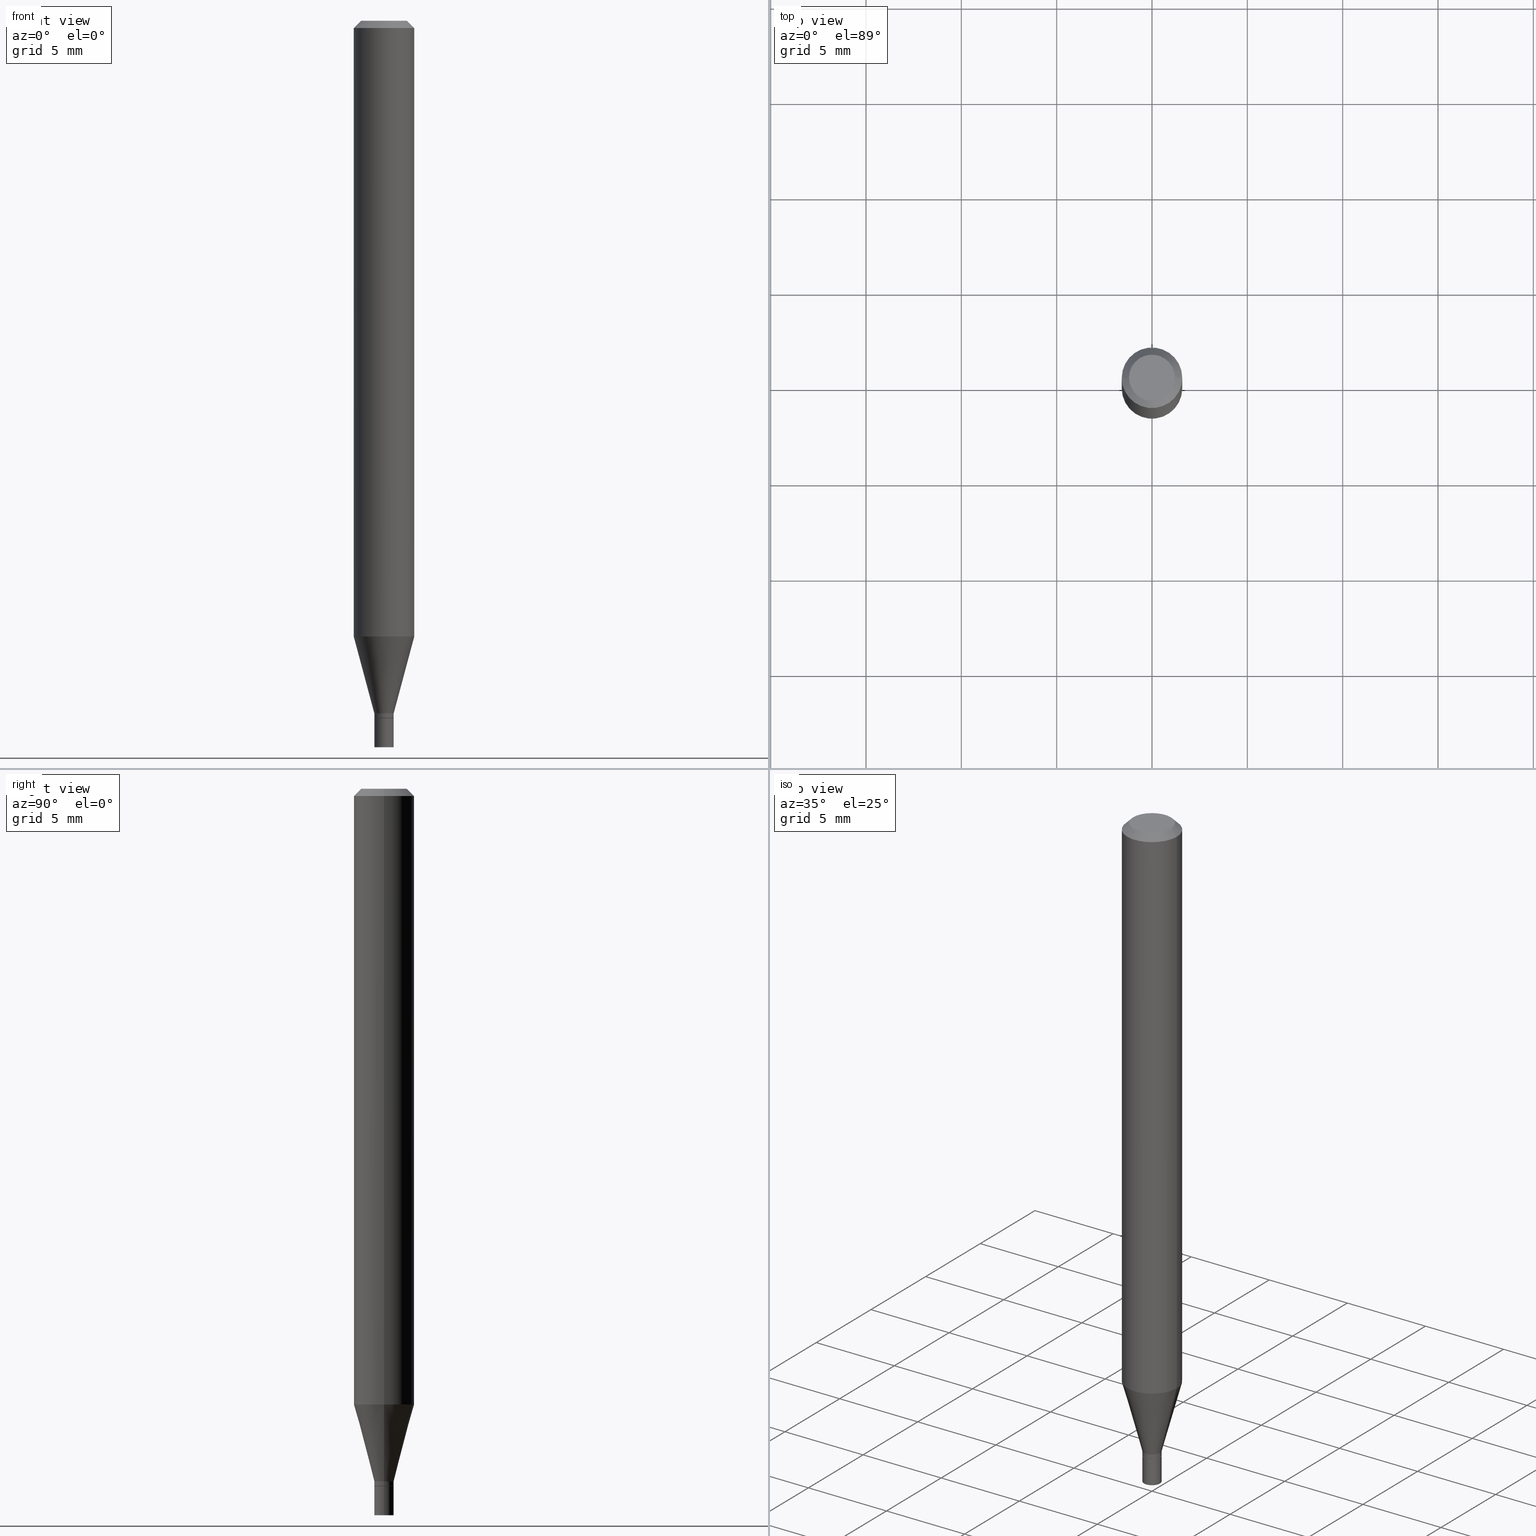
[diagram: canonical four-view strip — front | top / right | iso, engineering-drawing reading convention]
A machine part, canonical four-view strip (front | top / right | iso — engineering-drawing reading convention). The complete STEP part file that produces these views, byte-faithful:
ISO-10303-21;
HEADER;
FILE_DESCRIPTION (( 'STEP AP203' ),
    '1' );
FILE_NAME ('02236.STEP',
    '2024-03-18T19:56:00',
    ( '' ),
    ( '' ),
    'SwSTEP 2.0',
    'SolidWorks 2023',
    '' );
FILE_SCHEMA (( 'CONFIG_CONTROL_DESIGN' ));
ENDSEC;

DATA;
#1 = CARTESIAN_POINT ( 'NONE',  ( -3.223020679335594837E-45, 4.601619341103081537E-31, 1.317956160873471783E-16 ) ) ;
#2 = CARTESIAN_POINT ( 'NONE',  ( -0.01999999999999992409, -4.422823738852031139E-15, -1.429999999999999938 ) ) ;
#3 = DIRECTION ( 'NONE',  ( -2.445468806185136877E-29, 3.491481338843145188E-15, 1.000000000000000000 ) ) ;
#4 = EDGE_CURVE ( 'NONE', #346, #458, #264, .T. ) ;
#5 = PERSON_AND_ORGANIZATION_ROLE ( 'creator' ) ;
#6 = DIRECTION ( 'NONE',  ( 1.000000000000000000, -6.982962677686262766E-15, 0.000000000000000000 ) ) ;
#7 = CARTESIAN_POINT ( 'NONE',  ( 0.000000000000000000, 0.000000000000000000, 0.000000000000000000 ) ) ;
#8 = CONICAL_SURFACE ( 'NONE', #301, 0.01949999999999999997, 0.7853981633974739252 ) ;
#9 = LINE ( 'NONE', #78, #341 ) ;
#10 = AXIS2_PLACEMENT_3D ( 'NONE', #65, #43, #316 ) ;
#11 = DATE_AND_TIME ( #239, #137 ) ;
#12 = DIRECTION ( 'NONE',  ( 1.000000000000000000, -6.982962677686284065E-15, 0.000000000000000000 ) ) ;
#13 = CYLINDRICAL_SURFACE ( 'NONE', #336, 0.06250000000000000000 ) ;
#14 = DIRECTION ( 'NONE',  ( 0.000000000000000000, 0.000000000000000000, 1.000000000000000000 ) ) ;
#15 = DIRECTION ( 'NONE',  ( -2.445468806185136597E-29, 3.491481338843145583E-15, 1.000000000000000000 ) ) ;
#16 = COORDINATED_UNIVERSAL_TIME_OFFSET ( 5, 0, .BEHIND. ) ;
#17 = LINE ( 'NONE', #225, #48 ) ;
#18 = CIRCLE ( 'NONE', #101, 0.02000000000000000042 ) ;
#19 = EDGE_CURVE ( 'NONE', #380, #430, #228, .T. ) ;
#20 = DIRECTION ( 'NONE',  ( 1.000000000000000000, -6.982962677686284065E-15, 0.000000000000000000 ) ) ;
#21 = DATE_AND_TIME ( #417, #429 ) ;
#22 = CONICAL_SURFACE ( 'NONE', #127, 0.06250000000000000000, 0.7853981633974439491 ) ;
#23 = CC_DESIGN_DATE_AND_TIME_ASSIGNMENT ( #331, #149, ( #227 ) ) ;
#24 = VECTOR ( 'NONE', #76, 39.37007874015748143 ) ;
#25 = EDGE_LOOP ( 'NONE', ( #241, #389, #58, #29 ) ) ;
#26 = EDGE_CURVE ( 'NONE', #304, #456, #231, .T. ) ;
#27 = PRODUCT_RELATED_PRODUCT_CATEGORY ( 'detail', '', ( #144 ) ) ;
#28 = AXIS2_PLACEMENT_3D ( 'NONE', #148, #45, #288 ) ;
#29 = ORIENTED_EDGE ( 'NONE', *, *, #254, .F. ) ;
#30 = ORIENTED_EDGE ( 'NONE', *, *, #215, .T. ) ;
#31 = CARTESIAN_POINT ( 'NONE',  ( 3.109139304941917248E-29, -4.439026920160447637E-15, -1.271387840678323000 ) ) ;
#32 = ORIENTED_EDGE ( 'NONE', *, *, #454, .T. ) ;
#33 = AXIS2_PLACEMENT_3D ( 'NONE', #214, #284, #358 ) ;
#34 = CYLINDRICAL_SURFACE ( 'NONE', #377, 0.02000000000000000042 ) ;
#35 = CIRCLE ( 'NONE', #354, 0.04749999999999999362 ) ;
#36 = ORIENTED_EDGE ( 'NONE', *, *, #26, .F. ) ;
#37 = SECURITY_CLASSIFICATION_LEVEL ( 'unclassified' ) ;
#38 = PRODUCT_DEFINITION_SHAPE ( 'NONE', 'NONE',  #153 ) ;
#39 = ADVANCED_FACE ( 'NONE', ( #41 ), #404, .T. ) ;
#40 = DIRECTION ( 'NONE',  ( -2.445468806185136597E-29, 3.491481338843145583E-15, 1.000000000000000000 ) ) ;
#41 = FACE_OUTER_BOUND ( 'NONE', #25, .T. ) ;
#42 = FACE_OUTER_BOUND ( 'NONE', #460, .T. ) ;
#43 = DIRECTION ( 'NONE',  ( 2.445468806185136597E-29, -3.491481338843145583E-15, -1.000000000000000000 ) ) ;
#44 = DIRECTION ( 'NONE',  ( -2.445468806185136597E-29, 3.491481338843145583E-15, 1.000000000000000000 ) ) ;
#45 = DIRECTION ( 'NONE',  ( -2.445468806185136597E-29, 3.491481338843145583E-15, 1.000000000000000000 ) ) ;
#46 = CC_DESIGN_PERSON_AND_ORGANIZATION_ASSIGNMENT ( #339, #371, ( #153 ) ) ;
#47 = CARTESIAN_POINT ( 'NONE',  ( -0.01949999999999999997, -4.886528067286799394E-15, -1.440000000000000169 ) ) ;
#48 = VECTOR ( 'NONE', #159, 39.37007874015748143 ) ;
#49 = CIRCLE ( 'NONE', #302, 0.02000000000000000042 ) ;
#50 = CARTESIAN_POINT ( 'NONE',  ( 0.02000000000000000042, -1.396592535537253145E-16, 9.752353551591871936E-31 ) ) ;
#51 = CARTESIAN_POINT ( 'NONE',  ( 3.521475080906597305E-29, -5.027733127934130649E-15, -1.440000000000000169 ) ) ;
#52 = PERSON_AND_ORGANIZATION ( #226, #163 ) ;
#53 = CARTESIAN_POINT ( 'NONE',  ( -0.02000000000000000042, 1.421085471520200401E-16, -9.837870180509812545E-31 ) ) ;
#54 = APPLICATION_PROTOCOL_DEFINITION ( 'international standard', 'config_control_design', 1994, #399 ) ;
#55 = ADVANCED_FACE ( 'NONE', ( #283 ), #408, .F. ) ;
#56 = CARTESIAN_POINT ( 'NONE',  ( 0.06249999999999999306, -4.875462087515837728E-15, -1.271387840678323000 ) ) ;
#57 = CIRCLE ( 'NONE', #365, 0.02000000000000000042 ) ;
#58 = ORIENTED_EDGE ( 'NONE', *, *, #337, .F. ) ;
#59 = CC_DESIGN_PERSON_AND_ORGANIZATION_ASSIGNMENT ( #278, #5, ( #72 ) ) ;
#60 = ORIENTED_EDGE ( 'NONE', *, *, #281, .F. ) ;
#61 = EDGE_CURVE ( 'NONE', #100, #396, #57, .T. ) ;
#62 = VECTOR ( 'NONE', #110, 39.37007874015748143 ) ;
#63 = EDGE_LOOP ( 'NONE', ( #345, #103, #453, #463 ) ) ;
#64 = EDGE_LOOP ( 'NONE', ( #167, #203 ) ) ;
#65 = CARTESIAN_POINT ( 'NONE',  ( 3.668203209277705088E-31, -5.237222008264718399E-17, -0.01499999999999999944 ) ) ;
#66 = ORIENTED_EDGE ( 'NONE', *, *, #269, .F. ) ;
#67 = ADVANCED_FACE ( 'NONE', ( #333 ), #13, .T. ) ;
#68 = ORIENTED_EDGE ( 'NONE', *, *, #192, .F. ) ;
#69 = CARTESIAN_POINT ( 'NONE',  ( -0.06250000000000000000, -1.801610360271484545E-15, -0.01499999999999999944 ) ) ;
#70 = ADVANCED_FACE ( 'NONE', ( #290 ), #182, .T. ) ;
#71 = VERTEX_POINT ( 'NONE', #2 ) ;
#72 = PRODUCT_DEFINITION_FORMATION_WITH_SPECIFIED_SOURCE ( 'ANY', '', #144, .NOT_KNOWN. ) ;
#73 = DIRECTION ( 'NONE',  ( -2.445468806185136597E-29, 3.491481338843145583E-15, 1.000000000000000000 ) ) ;
#74 = ORIENTED_EDGE ( 'NONE', *, *, #320, .F. ) ;
#75 = PLANE ( 'NONE',  #33 ) ;
#76 = DIRECTION ( 'NONE',  ( -0.7071067811865444641, 2.468850131082224717E-15, -0.7071067811865505703 ) ) ;
#77 = DIRECTION ( 'NONE',  ( 2.438088387897960049E-29, -3.491481338843145188E-15, -1.000000000000000000 ) ) ;
#78 = CARTESIAN_POINT ( 'NONE',  ( -0.01999999999999992409, 1.421085471520194978E-16, -9.837870180509774009E-31 ) ) ;
#79 = CARTESIAN_POINT ( 'NONE',  ( 3.521475080906597305E-29, -5.027733127934130649E-15, -1.440000000000000169 ) ) ;
#80 = DIRECTION ( 'NONE',  ( -2.445468806185136597E-29, 3.491481338843145583E-15, 1.000000000000000000 ) ) ;
#81 = DIRECTION ( 'NONE',  ( 1.000000000000000000, -6.982962677686262766E-15, 0.000000000000000000 ) ) ;
#82 = PERSON_AND_ORGANIZATION_ROLE ( 'design_owner' ) ;
#83 = AXIS2_PLACEMENT_3D ( 'NONE', #349, #209, #114 ) ;
#84 = CIRCLE ( 'NONE', #121, 0.02000000000000000042 ) ;
#85 = DIRECTION ( 'NONE',  ( -2.445468806185136877E-29, 3.491481338843145188E-15, 1.000000000000000000 ) ) ;
#86 = CARTESIAN_POINT ( 'NONE',  ( 0.000000000000000000, 0.000000000000000000, 0.000000000000000000 ) ) ;
#87 = DIRECTION ( 'NONE',  ( -2.445468806185136597E-29, 3.491481338843145583E-15, 1.000000000000000000 ) ) ;
#88 = LINE ( 'NONE', #53, #145 ) ;
#89 = EDGE_CURVE ( 'NONE', #102, #304, #142, .T. ) ;
#90 = FACE_OUTER_BOUND ( 'NONE', #63, .T. ) ;
#91 = CIRCLE ( 'NONE', #236, 0.01999999999999992409 ) ;
#92 = EDGE_LOOP ( 'NONE', ( #105, #406, #198, #238 ) ) ;
#93 = EDGE_LOOP ( 'NONE', ( #207, #388 ) ) ;
#94 = VECTOR ( 'NONE', #85, 39.37007874015748143 ) ;
#95 = CIRCLE ( 'NONE', #273, 0.01999999999999992409 ) ;
#96 =( GEOMETRIC_REPRESENTATION_CONTEXT ( 3 ) GLOBAL_UNCERTAINTY_ASSIGNED_CONTEXT ( ( #267 ) ) GLOBAL_UNIT_ASSIGNED_CONTEXT ( ( #188, #297, #411 ) ) REPRESENTATION_CONTEXT ( 'NONE', 'WORKASPACE' ) );
#97 = EDGE_LOOP ( 'NONE', ( #347, #135, #139, #313 ) ) ;
#98 = DIRECTION ( 'NONE',  ( -2.445468806185136877E-29, 3.491481338843145188E-15, 1.000000000000000000 ) ) ;
#99 = ORIENTED_EDGE ( 'NONE', *, *, #187, .F. ) ;
#100 = VERTEX_POINT ( 'NONE', #113 ) ;
#101 = AXIS2_PLACEMENT_3D ( 'NONE', #418, #123, #20 ) ;
#102 = VERTEX_POINT ( 'NONE', #247 ) ;
#103 = ORIENTED_EDGE ( 'NONE', *, *, #244, .T. ) ;
#104 = CARTESIAN_POINT ( 'NONE',  ( 3.497020392844745759E-29, -4.992818314545698211E-15, -1.429999999999999938 ) ) ;
#105 = ORIENTED_EDGE ( 'NONE', *, *, #19, .F. ) ;
#106 = ADVANCED_FACE ( 'NONE', ( #255 ), #437, .T. ) ;
#107 = ORIENTED_EDGE ( 'NONE', *, *, #61, .T. ) ;
#108 = APPROVAL_ROLE ( '' ) ;
#109 = CARTESIAN_POINT ( 'NONE',  ( 3.520252346503504503E-29, -5.025987387264709145E-15, -1.439500000000000224 ) ) ;
#110 = DIRECTION ( 'NONE',  ( 0.7071067811865656694, -2.468850131082446387E-15, 0.7071067811865294761 ) ) ;
#111 = DIRECTION ( 'NONE',  ( -1.000000000000000000, 6.982962677686266711E-15, 0.000000000000000000 ) ) ;
#112 = DIRECTION ( 'NONE',  ( -0.2588190451025215166, 5.211531920934551042E-15, 0.9659258262890679791 ) ) ;
#113 = CARTESIAN_POINT ( 'NONE',  ( 0.02000000000000000042, -5.376881261818443984E-15, -1.500000000000000222 ) ) ;
#114 = DIRECTION ( 'NONE',  ( 1.000000000000000000, -6.982962677686262766E-15, 0.000000000000000000 ) ) ;
#115 = DIRECTION ( 'NONE',  ( 0.7071067811865444641, -7.319954787623245001E-15, -0.7071067811865505703 ) ) ;
#116 = PERSON_AND_ORGANIZATION ( #226, #163 ) ;
#117 = LINE ( 'NONE', #170, #457 ) ;
#118 = CARTESIAN_POINT ( 'NONE',  ( 0.01999999999999992409, -5.132477568099422441E-15, -1.429999999999999938 ) ) ;
#119 = LENGTH_MEASURE_WITH_UNIT ( LENGTH_MEASURE( 0.02539999999999999897 ), #367 );
#120 = CONICAL_SURFACE ( 'NONE', #193, 0.01999999999999992409, 0.2617993877991502405 ) ;
#121 = AXIS2_PLACEMENT_3D ( 'NONE', #79, #141, #282 ) ;
#122 = APPROVAL_STATUS ( 'not_yet_approved' ) ;
#123 = DIRECTION ( 'NONE',  ( -2.445468806185136597E-29, 3.491481338843145583E-15, 1.000000000000000000 ) ) ;
#124 = EDGE_CURVE ( 'NONE', #304, #452, #376, .T. ) ;
#125 = CALENDAR_DATE ( 2024, 18, 3 ) ;
#126 = DIRECTION ( 'NONE',  ( -2.445468806185136597E-29, 3.491481338843145583E-15, 1.000000000000000000 ) ) ;
#127 = AXIS2_PLACEMENT_3D ( 'NONE', #243, #328, #111 ) ;
#128 = CONICAL_SURFACE ( 'NONE', #318, 0.01949999999999999997, 0.7853981633974739252 ) ;
#129 = ORIENTED_EDGE ( 'NONE', *, *, #363, .T. ) ;
#130 = CC_DESIGN_PERSON_AND_ORGANIZATION_ASSIGNMENT ( #116, #275, ( #227 ) ) ;
#131 = CLOSED_SHELL ( 'NONE', ( #387, #166, #106, #55 ) ) ;
#132 = APPROVAL_PERSON_ORGANIZATION ( #52, #219, #334 ) ;
#133 = ORIENTED_EDGE ( 'NONE', *, *, #369, .F. ) ;
#134 = ADVANCED_FACE ( 'NONE', ( #280 ), #22, .T. ) ;
#135 = ORIENTED_EDGE ( 'NONE', *, *, #444, .T. ) ;
#136 = EDGE_LOOP ( 'NONE', ( #68, #129, #169, #235 ) ) ;
#137 = LOCAL_TIME ( 15, 56, 0.000000000000000000, #286 ) ;
#138 = CARTESIAN_POINT ( 'NONE',  ( 0.01949999999999999997, -5.163900900149012660E-15, -1.440000000000000169 ) ) ;
#139 = ORIENTED_EDGE ( 'NONE', *, *, #281, .T. ) ;
#140 = CARTESIAN_POINT ( 'NONE',  ( -0.02000000000000000042, -4.990369020947403855E-15, -1.500000000000000222 ) ) ;
#141 = DIRECTION ( 'NONE',  ( -2.445468806185136597E-29, 3.491481338843145583E-15, 1.000000000000000000 ) ) ;
#142 = LINE ( 'NONE', #118, #428 ) ;
#143 = DIRECTION ( 'NONE',  ( -2.445468806185136877E-29, 3.491481338843145188E-15, 1.000000000000000000 ) ) ;
#144 = PRODUCT ( '02236', '02236', '', ( #222 ) ) ;
#145 = VECTOR ( 'NONE', #190, 39.37007874015748143 ) ;
#146 = CARTESIAN_POINT ( 'NONE',  ( -3.223020679335594837E-45, 4.601619341103081537E-31, 1.317956160873471783E-16 ) ) ;
#147 = CARTESIAN_POINT ( 'NONE',  ( 3.497020392844745759E-29, -4.992818314545698211E-15, -1.429999999999999938 ) ) ;
#148 = CARTESIAN_POINT ( 'NONE',  ( 3.668203209277705088E-31, -5.237222008264718399E-17, -0.01499999999999999944 ) ) ;
#149 = DATE_TIME_ROLE ( 'classification_date' ) ;
#150 = CARTESIAN_POINT ( 'NONE',  ( 0.01999999999999992409, -5.165646640818434164E-15, -1.439500000000000224 ) ) ;
#151 = DIRECTION ( 'NONE',  ( -2.445468806185136597E-29, 3.491481338843145583E-15, 1.000000000000000000 ) ) ;
#152 = ADVANCED_BREP_SHAPE_REPRESENTATION ( '02236', ( #160, #308, #366 ), #96 ) ;
#153 = PRODUCT_DEFINITION ( 'UNKNOWN', '', #72, #421 ) ;
#154 = LINE ( 'NONE', #50, #94 ) ;
#155 = DIRECTION ( 'NONE',  ( -1.000000000000000000, 6.982962677686265922E-15, -4.876176775795935793E-29 ) ) ;
#156 = PLANE ( 'NONE',  #419 ) ;
#157 = DIRECTION ( 'NONE',  ( 1.000000000000000000, 0.000000000000000000, 0.000000000000000000 ) ) ;
#158 = ADVANCED_FACE ( 'NONE', ( #42 ), #178, .T. ) ;
#159 = DIRECTION ( 'NONE',  ( -2.445468806185136877E-29, 3.491481338843145188E-15, 1.000000000000000000 ) ) ;
#160 = MANIFOLD_SOLID_BREP ( 'Body-Move/Copy2[1]', #131 ) ;
#161 = CALENDAR_DATE ( 2024, 18, 3 ) ;
#162 = CIRCLE ( 'NONE', #220, 0.06250000000000000000 ) ;
#163 = ORGANIZATION ( 'UNSPECIFIED', 'UNSPECIFIED', '' ) ;
#164 = ORIENTED_EDGE ( 'NONE', *, *, #187, .T. ) ;
#165 = ORIENTED_EDGE ( 'NONE', *, *, #124, .T. ) ;
#166 = ADVANCED_FACE ( 'NONE', ( #441 ), #75, .F. ) ;
#167 = ORIENTED_EDGE ( 'NONE', *, *, #230, .F. ) ;
#168 = ORIENTED_EDGE ( 'NONE', *, *, #454, .F. ) ;
#169 = ORIENTED_EDGE ( 'NONE', *, *, #254, .T. ) ;
#170 = CARTESIAN_POINT ( 'NONE',  ( -0.01999999999999992409, -4.850709767393678047E-15, -1.429999999999999938 ) ) ;
#171 = AXIS2_PLACEMENT_3D ( 'NONE', #104, #40, #436 ) ;
#172 = ORIENTED_EDGE ( 'NONE', *, *, #26, .T. ) ;
#173 = DIRECTION ( 'NONE',  ( -2.445468806185136597E-29, 3.491481338843145583E-15, 1.000000000000000000 ) ) ;
#174 = ORIENTED_EDGE ( 'NONE', *, *, #415, .F. ) ;
#175 = PERSON_AND_ORGANIZATION_ROLE ( 'design_supplier' ) ;
#176 = DIRECTION ( 'NONE',  ( 1.000000000000000000, -6.982962677686262766E-15, 0.000000000000000000 ) ) ;
#177 = DIRECTION ( 'NONE',  ( 1.000000000000000000, -6.982962677686266711E-15, 4.876176775795935793E-29 ) ) ;
#178 = CYLINDRICAL_SURFACE ( 'NONE', #210, 0.06250000000000000000 ) ;
#179 = CARTESIAN_POINT ( 'NONE',  ( -0.06249999999999999306, -3.994937710310384232E-15, -1.271387840678323000 ) ) ;
#180 = DIRECTION ( 'NONE',  ( 0.2588190451025215166, 1.565188264969620784E-15, 0.9659258262890679791 ) ) ;
#181 = PERSON_AND_ORGANIZATION ( #226, #163 ) ;
#182 = CONICAL_SURFACE ( 'NONE', #317, 0.01999999999999992409, 0.2617993877991502405 ) ;
#183 = AXIS2_PLACEMENT_3D ( 'NONE', #464, #440, #434 ) ;
#184 = DIRECTION ( 'NONE',  ( 1.000000000000000000, -6.982962677686267499E-15, 4.884662768193073002E-29 ) ) ;
#185 = CARTESIAN_POINT ( 'NONE',  ( 1.396592535537605421E-16, 0.01999999999999497319, -1.440000000000000169 ) ) ;
#186 = APPROVAL ( #410, 'UNSPECIFIED' ) ;
#187 = EDGE_CURVE ( 'NONE', #452, #433, #252, .T. ) ;
#188 =( CONVERSION_BASED_UNIT ( 'INCH', #119 ) LENGTH_UNIT ( ) NAMED_UNIT ( #250 ) );
#189 = COORDINATED_UNIVERSAL_TIME_OFFSET ( 5, 0, .BEHIND. ) ;
#190 = DIRECTION ( 'NONE',  ( -2.445468806185136877E-29, 3.491481338843145188E-15, 1.000000000000000000 ) ) ;
#191 = PERSON_AND_ORGANIZATION ( #226, #163 ) ;
#192 = EDGE_CURVE ( 'NONE', #430, #71, #9, .T. ) ;
#193 = AXIS2_PLACEMENT_3D ( 'NONE', #224, #256, #81 ) ;
#194 = CC_DESIGN_SECURITY_CLASSIFICATION ( #227, ( #72 ) ) ;
#195 = ORIENTED_EDGE ( 'NONE', *, *, #215, .F. ) ;
#196 = CARTESIAN_POINT ( 'NONE',  ( 0.01949999999999999997, -5.163900900149012660E-15, -1.440000000000000169 ) ) ;
#197 = ADVANCED_FACE ( 'NONE', ( #439 ), #409, .T. ) ;
#198 = ORIENTED_EDGE ( 'NONE', *, *, #4, .T. ) ;
#199 = ORIENTED_EDGE ( 'NONE', *, *, #444, .F. ) ;
#200 = APPROVAL ( #414, 'UNSPECIFIED' ) ;
#201 = AXIS2_PLACEMENT_3D ( 'NONE', #185, #77, #155 ) ;
#202 = LOCAL_TIME ( 15, 56, 0.000000000000000000, #258 ) ;
#203 = ORIENTED_EDGE ( 'NONE', *, *, #426, .F. ) ;
#204 = ORIENTED_EDGE ( 'NONE', *, *, #361, .T. ) ;
#205 = DIRECTION ( 'NONE',  ( -2.445468806185136597E-29, 3.491481338843145583E-15, 1.000000000000000000 ) ) ;
#206 = CC_DESIGN_PERSON_AND_ORGANIZATION_ASSIGNMENT ( #378, #82, ( #144 ) ) ;
#207 = ORIENTED_EDGE ( 'NONE', *, *, #269, .T. ) ;
#208 = DIRECTION ( 'NONE',  ( 1.000000000000000000, -6.982962677686262766E-15, 0.000000000000000000 ) ) ;
#209 = DIRECTION ( 'NONE',  ( -2.445468806185136597E-29, 3.491481338843145583E-15, 1.000000000000000000 ) ) ;
#210 = AXIS2_PLACEMENT_3D ( 'NONE', #465, #401, #325 ) ;
#211 = CC_DESIGN_APPROVAL ( #186, ( #227 ) ) ;
#212 = EDGE_LOOP ( 'NONE', ( #99, #303, #172, #74 ) ) ;
#213 = DIRECTION ( 'NONE',  ( 1.000000000000000000, -6.982962677686258033E-15, 0.000000000000000000 ) ) ;
#214 = CARTESIAN_POINT ( 'NONE',  ( 3.576687321579069994E-29, -5.368277968210015545E-15, -1.500000000000000222 ) ) ;
#215 = EDGE_CURVE ( 'NONE', #456, #433, #390, .T. ) ;
#216 = DIRECTION ( 'NONE',  ( -2.445468806185136597E-29, 3.491481338843145583E-15, 1.000000000000000000 ) ) ;
#217 = DIRECTION ( 'NONE',  ( 1.000000000000000000, -6.982962677686262766E-15, 0.000000000000000000 ) ) ;
#218 = CARTESIAN_POINT ( 'NONE',  ( 0.06250000000000000000, -4.811533449433679005E-16, -0.01499999999999999944 ) ) ;
#219 = APPROVAL ( #122, 'UNSPECIFIED' ) ;
#220 = AXIS2_PLACEMENT_3D ( 'NONE', #385, #412, #348 ) ;
#221 = LOCAL_TIME ( 15, 56, 0.000000000000000000, #397 ) ;
#222 = MECHANICAL_CONTEXT ( 'NONE', #311, 'mechanical' ) ;
#223 = CARTESIAN_POINT ( 'NONE',  ( 0.000000000000000000, 0.000000000000000000, 0.000000000000000000 ) ) ;
#224 = CARTESIAN_POINT ( 'NONE',  ( 3.497020392844745759E-29, -4.992818314545698211E-15, -1.429999999999999938 ) ) ;
#225 = CARTESIAN_POINT ( 'NONE',  ( 0.01999999999999992409, -1.396592535537247968E-16, 9.752353551591833400E-31 ) ) ;
#226 = PERSON ( 'UNSPECIFIED', 'UNSPECIFIED', 'UNSPECIFIED', ('UNSPECIFIED'), ('UNSPECIFIED'), ('UNSPECIFIED') ) ;
#227 = SECURITY_CLASSIFICATION ( '', '', #37 ) ;
#228 = LINE ( 'NONE', #382, #285 ) ;
#229 = DIRECTION ( 'NONE',  ( 1.000000000000000000, -6.982962677686265922E-15, 4.876176775795935793E-29 ) ) ;
#230 = EDGE_CURVE ( 'NONE', #346, #380, #450, .T. ) ;
#231 = LINE ( 'NONE', #384, #272 ) ;
#232 = ORIENTED_EDGE ( 'NONE', *, *, #337, .T. ) ;
#233 = ORIENTED_EDGE ( 'NONE', *, *, #124, .F. ) ;
#234 = CC_DESIGN_DATE_AND_TIME_ASSIGNMENT ( #21, #446, ( #153 ) ) ;
#235 = ORIENTED_EDGE ( 'NONE', *, *, #244, .F. ) ;
#236 = AXIS2_PLACEMENT_3D ( 'NONE', #259, #372, #298 ) ;
#237 = ORIENTED_EDGE ( 'NONE', *, *, #4, .F. ) ;
#238 = ORIENTED_EDGE ( 'NONE', *, *, #363, .F. ) ;
#239 = CALENDAR_DATE ( 2024, 18, 3 ) ;
#240 = FACE_OUTER_BOUND ( 'NONE', #277, .T. ) ;
#241 = ORIENTED_EDGE ( 'NONE', *, *, #350, .T. ) ;
#242 = DIRECTION ( 'NONE',  ( -2.445468806185136597E-29, 3.491481338843145583E-15, 1.000000000000000000 ) ) ;
#243 = CARTESIAN_POINT ( 'NONE',  ( 3.668203209277705088E-31, -5.237222008264718399E-17, -0.01499999999999999944 ) ) ;
#244 = EDGE_CURVE ( 'NONE', #71, #102, #91, .T. ) ;
#245 = APPROVAL_PERSON_ORGANIZATION ( #191, #200, #295 ) ;
#246 = DIRECTION ( 'NONE',  ( -2.445468806185136597E-29, 3.491481338843145583E-15, 1.000000000000000000 ) ) ;
#247 = CARTESIAN_POINT ( 'NONE',  ( 0.01999999999999992409, -5.132477568099422441E-15, -1.429999999999999938 ) ) ;
#248 = CARTESIAN_POINT ( 'NONE',  ( 0.000000000000000000, 0.000000000000000000, 0.000000000000000000 ) ) ;
#249 = CALENDAR_DATE ( 2024, 18, 3 ) ;
#250 = DIMENSIONAL_EXPONENTS ( 1.000000000000000000, 0.000000000000000000, 0.000000000000000000, 0.000000000000000000, 0.000000000000000000, 0.000000000000000000, 0.000000000000000000 ) ;
#251 = CARTESIAN_POINT ( 'NONE',  ( 0.06250000000000000000, -4.888073874380388472E-16, -0.01499999999999999944 ) ) ;
#252 = LINE ( 'NONE', #405, #438 ) ;
#253 = FACE_OUTER_BOUND ( 'NONE', #322, .T. ) ;
#254 = EDGE_CURVE ( 'NONE', #458, #102, #17, .T. ) ;
#255 = FACE_OUTER_BOUND ( 'NONE', #97, .T. ) ;
#256 = DIRECTION ( 'NONE',  ( -2.445468806185136597E-29, 3.491481338843145583E-15, 1.000000000000000000 ) ) ;
#257 = APPLICATION_PROTOCOL_DEFINITION ( 'international standard', 'config_control_design', 1994, #311 ) ;
#258 = COORDINATED_UNIVERSAL_TIME_OFFSET ( 5, 0, .BEHIND. ) ;
#259 = CARTESIAN_POINT ( 'NONE',  ( 3.497020392844745759E-29, -4.992818314545698211E-15, -1.429999999999999938 ) ) ;
#260 = EDGE_CURVE ( 'NONE', #396, #459, #88, .T. ) ;
#261 = APPROVAL_DATE_TIME ( #374, #200 ) ;
#262 = APPROVAL_PERSON_ORGANIZATION ( #359, #186, #108 ) ;
#263 = ADVANCED_FACE ( 'NONE', ( #296 ), #8, .T. ) ;
#264 = LINE ( 'NONE', #196, #62 ) ;
#265 = VERTEX_POINT ( 'NONE', #338 ) ;
#266 = CONICAL_SURFACE ( 'NONE', #10, 0.06250000000000000000, 0.7853981633974439491 ) ;
#267 = UNCERTAINTY_MEASURE_WITH_UNIT (LENGTH_MEASURE( 1.000000000000000082E-05 ), #188, 'distance_accuracy_value', 'NONE');
#268 = EDGE_LOOP ( 'NONE', ( #343, #199 ) ) ;
#269 = EDGE_CURVE ( 'NONE', #314, #459, #18, .T. ) ;
#270 = EDGE_LOOP ( 'NONE', ( #232, #204, #233, #340 ) ) ;
#271 = ADVANCED_FACE ( 'NONE', ( #90 ), #120, .T. ) ;
#272 = VECTOR ( 'NONE', #98, 39.37007874015748143 ) ;
#273 = AXIS2_PLACEMENT_3D ( 'NONE', #323, #242, #6 ) ;
#274 = ORIENTED_EDGE ( 'NONE', *, *, #230, .T. ) ;
#275 = PERSON_AND_ORGANIZATION_ROLE ( 'classification_officer' ) ;
#276 = DIRECTION ( 'NONE',  ( 1.000000000000000000, -6.982962677686265922E-15, 4.876176775795935793E-29 ) ) ;
#277 = EDGE_LOOP ( 'NONE', ( #393, #312 ) ) ;
#278 = PERSON_AND_ORGANIZATION ( #226, #163 ) ;
#279 = CARTESIAN_POINT ( 'NONE',  ( -0.06250000000000000000, 3.840629472727444916E-16, -0.01499999999999999944 ) ) ;
#280 = FACE_OUTER_BOUND ( 'NONE', #423, .T. ) ;
#281 = EDGE_CURVE ( 'NONE', #100, #314, #154, .T. ) ;
#282 = DIRECTION ( 'NONE',  ( 1.000000000000000000, -6.982962677686284065E-15, 0.000000000000000000 ) ) ;
#283 = FACE_OUTER_BOUND ( 'NONE', #93, .T. ) ;
#284 = DIRECTION ( 'NONE',  ( -2.438088387897960049E-29, 3.491481338843145188E-15, 1.000000000000000000 ) ) ;
#285 = VECTOR ( 'NONE', #424, 39.37007874015748143 ) ;
#286 = COORDINATED_UNIVERSAL_TIME_OFFSET ( 5, 0, .BEHIND. ) ;
#287 = PLANE ( 'NONE',  #183 ) ;
#288 = DIRECTION ( 'NONE',  ( 1.000000000000000000, -6.982962677686266711E-15, 0.000000000000000000 ) ) ;
#289 = CARTESIAN_POINT ( 'NONE',  ( -0.02000000000000000042, -4.990369020947403855E-15, -1.440000000000000169 ) ) ;
#290 = FACE_OUTER_BOUND ( 'NONE', #270, .T. ) ;
#291 = AXIS2_PLACEMENT_3D ( 'NONE', #375, #126, #335 ) ;
#292 = AXIS2_PLACEMENT_3D ( 'NONE', #248, #80, #362 ) ;
#293 = VECTOR ( 'NONE', #115, 39.37007874015748143 ) ;
#294 = DIRECTION ( 'NONE',  ( -2.438088387897960049E-29, 3.491481338843145188E-15, 1.000000000000000000 ) ) ;
#295 = APPROVAL_ROLE ( '' ) ;
#296 = FACE_OUTER_BOUND ( 'NONE', #92, .T. ) ;
#297 =( NAMED_UNIT ( * ) PLANE_ANGLE_UNIT ( ) SI_UNIT ( $, .RADIAN. ) );
#298 = DIRECTION ( 'NONE',  ( 1.000000000000000000, -6.982962677686262766E-15, 0.000000000000000000 ) ) ;
#299 = ADVANCED_FACE ( 'NONE', ( #370 ), #156, .F. ) ;
#300 = DATE_AND_TIME ( #161, #425 ) ;
#301 = AXIS2_PLACEMENT_3D ( 'NONE', #447, #87, #448 ) ;
#302 = AXIS2_PLACEMENT_3D ( 'NONE', #357, #216, #12 ) ;
#303 = ORIENTED_EDGE ( 'NONE', *, *, #330, .T. ) ;
#304 = VERTEX_POINT ( 'NONE', #56 ) ;
#305 = CARTESIAN_POINT ( 'NONE',  ( 0.04749999999999999362, -4.035134999187576158E-16, 1.317956160873497667E-16 ) ) ;
#306 = CARTESIAN_POINT ( 'NONE',  ( 0.02000000000000000042, -5.167392381487856456E-15, -1.440000000000000169 ) ) ;
#307 = EDGE_LOOP ( 'NONE', ( #274, #356, #427, #237 ) ) ;
#308 = MANIFOLD_SOLID_BREP ( 'Body-Move/Copy2[2]', #310 ) ;
#309 = VERTEX_POINT ( 'NONE', #305 ) ;
#310 = CLOSED_SHELL ( 'NONE', ( #39, #373, #134, #158, #70, #271, #67, #344, #435, #299, #263, #197 ) ) ;
#311 = APPLICATION_CONTEXT ( 'configuration controlled 3d designs of mechanical parts and assemblies' ) ;
#312 = ORIENTED_EDGE ( 'NONE', *, *, #402, .T. ) ;
#313 = ORIENTED_EDGE ( 'NONE', *, *, #449, .F. ) ;
#314 = VERTEX_POINT ( 'NONE', #306 ) ;
#315 = APPROVAL_DATE_TIME ( #300, #219 ) ;
#316 = DIRECTION ( 'NONE',  ( -1.000000000000000000, 6.982962677686266711E-15, 0.000000000000000000 ) ) ;
#317 = AXIS2_PLACEMENT_3D ( 'NONE', #147, #324, #217 ) ;
#318 = AXIS2_PLACEMENT_3D ( 'NONE', #352, #442, #398 ) ;
#319 = ORIENTED_EDGE ( 'NONE', *, *, #320, .T. ) ;
#320 = EDGE_CURVE ( 'NONE', #433, #456, #162, .T. ) ;
#321 = DIRECTION ( 'NONE',  ( -2.445468806185136597E-29, 3.491481338843145583E-15, 1.000000000000000000 ) ) ;
#322 = EDGE_LOOP ( 'NONE', ( #168, #133, #392, #319 ) ) ;
#323 = CARTESIAN_POINT ( 'NONE',  ( 3.520252346503504503E-29, -5.025987387264709145E-15, -1.439500000000000224 ) ) ;
#324 = DIRECTION ( 'NONE',  ( -2.445468806185136597E-29, 3.491481338843145583E-15, 1.000000000000000000 ) ) ;
#325 = DIRECTION ( 'NONE',  ( 1.000000000000000000, -6.982962677686266711E-15, 4.876176775795935793E-29 ) ) ;
#326 = LINE ( 'NONE', #218, #293 ) ;
#327 = DIRECTION ( 'NONE',  ( 1.000000000000000000, -6.982962677686266711E-15, 4.876176775795935232E-29 ) ) ;
#328 = DIRECTION ( 'NONE',  ( 2.445468806185136597E-29, -3.491481338843145583E-15, -1.000000000000000000 ) ) ;
#329 = AXIS2_PLACEMENT_3D ( 'NONE', #1, #246, #184 ) ;
#330 = EDGE_CURVE ( 'NONE', #452, #304, #461, .T. ) ;
#331 = DATE_AND_TIME ( #249, #221 ) ;
#332 = CARTESIAN_POINT ( 'NONE',  ( 3.521475080906597305E-29, -5.027733127934130649E-15, -1.440000000000000169 ) ) ;
#333 = FACE_OUTER_BOUND ( 'NONE', #212, .T. ) ;
#334 = APPROVAL_ROLE ( '' ) ;
#335 = DIRECTION ( 'NONE',  ( 1.000000000000000000, -6.982962677686258033E-15, 0.000000000000000000 ) ) ;
#336 = AXIS2_PLACEMENT_3D ( 'NONE', #7, #151, #177 ) ;
#337 = EDGE_CURVE ( 'NONE', #102, #71, #383, .T. ) ;
#338 = CARTESIAN_POINT ( 'NONE',  ( -0.04749999999999999362, 3.578768372314212971E-16, 1.317956160873447624E-16 ) ) ;
#339 = PERSON_AND_ORGANIZATION ( #226, #163 ) ;
#340 = ORIENTED_EDGE ( 'NONE', *, *, #89, .F. ) ;
#341 = VECTOR ( 'NONE', #143, 39.37007874015748143 ) ;
#342 = CC_DESIGN_APPROVAL ( #219, ( #72 ) ) ;
#343 = ORIENTED_EDGE ( 'NONE', *, *, #61, .F. ) ;
#344 = ADVANCED_FACE ( 'NONE', ( #253 ), #266, .T. ) ;
#345 = ORIENTED_EDGE ( 'NONE', *, *, #361, .F. ) ;
#346 = VERTEX_POINT ( 'NONE', #138 ) ;
#347 = ORIENTED_EDGE ( 'NONE', *, *, #260, .F. ) ;
#348 = DIRECTION ( 'NONE',  ( 1.000000000000000000, -6.982962677686266711E-15, 0.000000000000000000 ) ) ;
#349 = CARTESIAN_POINT ( 'NONE',  ( 3.109139304941917248E-29, -4.439026920160447637E-15, -1.271387840678323000 ) ) ;
#350 = EDGE_CURVE ( 'NONE', #458, #430, #445, .T. ) ;
#351 = ORIENTED_EDGE ( 'NONE', *, *, #402, .F. ) ;
#352 = CARTESIAN_POINT ( 'NONE',  ( 3.521475080906597305E-29, -5.027733127934130649E-15, -1.440000000000000169 ) ) ;
#353 = AXIS2_PLACEMENT_3D ( 'NONE', #31, #407, #176 ) ;
#354 = AXIS2_PLACEMENT_3D ( 'NONE', #146, #173, #403 ) ;
#355 = CIRCLE ( 'NONE', #391, 0.01949999999999999997 ) ;
#356 = ORIENTED_EDGE ( 'NONE', *, *, #19, .T. ) ;
#357 = CARTESIAN_POINT ( 'NONE',  ( 3.668203209277704895E-29, -5.237222008264718177E-15, -1.500000000000000222 ) ) ;
#358 = DIRECTION ( 'NONE',  ( 1.000000000000000000, -6.982962677686265922E-15, 4.876176775795935793E-29 ) ) ;
#359 = PERSON_AND_ORGANIZATION ( #226, #163 ) ;
#360 = FACE_OUTER_BOUND ( 'NONE', #386, .T. ) ;
#361 = EDGE_CURVE ( 'NONE', #71, #452, #117, .T. ) ;
#362 = DIRECTION ( 'NONE',  ( 1.000000000000000000, -6.982962677686266711E-15, 4.876176775795935232E-29 ) ) ;
#363 = EDGE_CURVE ( 'NONE', #430, #458, #95, .T. ) ;
#364 = FACE_OUTER_BOUND ( 'NONE', #307, .T. ) ;
#365 = AXIS2_PLACEMENT_3D ( 'NONE', #443, #44, #368 ) ;
#366 = AXIS2_PLACEMENT_3D ( 'NONE', #86, #14, #157 ) ;
#367 =( LENGTH_UNIT ( ) NAMED_UNIT ( * ) SI_UNIT ( $, .METRE. ) );
#368 = DIRECTION ( 'NONE',  ( 1.000000000000000000, -6.982962677686284065E-15, 0.000000000000000000 ) ) ;
#369 = EDGE_CURVE ( 'NONE', #265, #309, #451, .T. ) ;
#370 = FACE_OUTER_BOUND ( 'NONE', #64, .T. ) ;
#371 = PERSON_AND_ORGANIZATION_ROLE ( 'creator' ) ;
#372 = DIRECTION ( 'NONE',  ( -2.445468806185136597E-29, 3.491481338843145583E-15, 1.000000000000000000 ) ) ;
#373 = ADVANCED_FACE ( 'NONE', ( #364 ), #128, .T. ) ;
#374 = DATE_AND_TIME ( #125, #202 ) ;
#375 = CARTESIAN_POINT ( 'NONE',  ( 3.521475080906597305E-29, -5.027733127934130649E-15, -1.440000000000000169 ) ) ;
#376 = CIRCLE ( 'NONE', #83, 0.06250000000000000000 ) ;
#377 = AXIS2_PLACEMENT_3D ( 'NONE', #462, #73, #276 ) ;
#378 = PERSON_AND_ORGANIZATION ( #226, #163 ) ;
#379 = DIRECTION ( 'NONE',  ( 1.000000000000000000, -6.982962677686265922E-15, 4.876176775795935793E-29 ) ) ;
#380 = VERTEX_POINT ( 'NONE', #47 ) ;
#381 = CARTESIAN_POINT ( 'NONE',  ( 0.000000000000000000, 0.000000000000000000, 0.000000000000000000 ) ) ;
#382 = CARTESIAN_POINT ( 'NONE',  ( -0.01949999999999999997, -4.889177294460910595E-15, -1.440000000000000169 ) ) ;
#383 = CIRCLE ( 'NONE', #171, 0.01999999999999992409 ) ;
#384 = CARTESIAN_POINT ( 'NONE',  ( 0.06250000000000000000, -4.364351673553916694E-16, 3.047610484872459871E-30 ) ) ;
#385 = CARTESIAN_POINT ( 'NONE',  ( 3.668203209277705088E-31, -5.237222008264718399E-17, -0.01499999999999999944 ) ) ;
#386 = EDGE_LOOP ( 'NONE', ( #107, #422, #66, #60 ) ) ;
#387 = ADVANCED_FACE ( 'NONE', ( #360 ), #34, .T. ) ;
#388 = ORIENTED_EDGE ( 'NONE', *, *, #449, .T. ) ;
#389 = ORIENTED_EDGE ( 'NONE', *, *, #192, .T. ) ;
#390 = CIRCLE ( 'NONE', #28, 0.06250000000000000000 ) ;
#391 = AXIS2_PLACEMENT_3D ( 'NONE', #332, #321, #213 ) ;
#392 = ORIENTED_EDGE ( 'NONE', *, *, #415, .T. ) ;
#393 = ORIENTED_EDGE ( 'NONE', *, *, #369, .T. ) ;
#394 = APPROVAL_DATE_TIME ( #11, #186 ) ;
#395 = LINE ( 'NONE', #279, #24 ) ;
#396 = VERTEX_POINT ( 'NONE', #140 ) ;
#397 = COORDINATED_UNIVERSAL_TIME_OFFSET ( 5, 0, .BEHIND. ) ;
#398 = DIRECTION ( 'NONE',  ( 1.000000000000000000, -6.982962677686258033E-15, 0.000000000000000000 ) ) ;
#399 = APPLICATION_CONTEXT ( 'configuration controlled 3d designs of mechanical parts and assemblies' ) ;
#400 = AXIS2_PLACEMENT_3D ( 'NONE', #381, #416, #379 ) ;
#401 = DIRECTION ( 'NONE',  ( -2.445468806185136597E-29, 3.491481338843145583E-15, 1.000000000000000000 ) ) ;
#402 = EDGE_CURVE ( 'NONE', #309, #265, #35, .T. ) ;
#403 = DIRECTION ( 'NONE',  ( 1.000000000000000000, -6.982962677686267499E-15, 4.884662768193073002E-29 ) ) ;
#404 = CYLINDRICAL_SURFACE ( 'NONE', #455, 0.01999999999999992409 ) ;
#405 = CARTESIAN_POINT ( 'NONE',  ( -0.06250000000000000000, 4.440892098500626162E-16, -3.074334431409316114E-30 ) ) ;
#406 = ORIENTED_EDGE ( 'NONE', *, *, #426, .T. ) ;
#407 = DIRECTION ( 'NONE',  ( -2.445468806185136597E-29, 3.491481338843145583E-15, 1.000000000000000000 ) ) ;
#408 = PLANE ( 'NONE',  #201 ) ;
#409 = CYLINDRICAL_SURFACE ( 'NONE', #292, 0.01999999999999992409 ) ;
#410 = APPROVAL_STATUS ( 'not_yet_approved' ) ;
#411 =( NAMED_UNIT ( * ) SI_UNIT ( $, .STERADIAN. ) SOLID_ANGLE_UNIT ( ) );
#412 = DIRECTION ( 'NONE',  ( -2.445468806185136597E-29, 3.491481338843145583E-15, 1.000000000000000000 ) ) ;
#413 = CC_DESIGN_APPROVAL ( #200, ( #153 ) ) ;
#414 = APPROVAL_STATUS ( 'not_yet_approved' ) ;
#415 = EDGE_CURVE ( 'NONE', #265, #433, #395, .T. ) ;
#416 = DIRECTION ( 'NONE',  ( -2.445468806185136597E-29, 3.491481338843145583E-15, 1.000000000000000000 ) ) ;
#417 = CALENDAR_DATE ( 2024, 18, 3 ) ;
#418 = CARTESIAN_POINT ( 'NONE',  ( 3.521475080906597305E-29, -5.027733127934130649E-15, -1.440000000000000169 ) ) ;
#419 = AXIS2_PLACEMENT_3D ( 'NONE', #51, #294, #229 ) ;
#420 = AXIS2_PLACEMENT_3D ( 'NONE', #109, #205, #208 ) ;
#421 = DESIGN_CONTEXT ( 'detailed design', #399, 'design' ) ;
#422 = ORIENTED_EDGE ( 'NONE', *, *, #260, .T. ) ;
#423 = EDGE_LOOP ( 'NONE', ( #351, #32, #30, #174 ) ) ;
#424 = DIRECTION ( 'NONE',  ( -0.7071067811865656694, 7.493145998870420424E-15, 0.7071067811865294761 ) ) ;
#425 = LOCAL_TIME ( 15, 56, 0.000000000000000000, #16 ) ;
#426 = EDGE_CURVE ( 'NONE', #380, #346, #355, .T. ) ;
#427 = ORIENTED_EDGE ( 'NONE', *, *, #350, .F. ) ;
#428 = VECTOR ( 'NONE', #180, 39.37007874015748143 ) ;
#429 = LOCAL_TIME ( 15, 56, 0.000000000000000000, #189 ) ;
#430 = VERTEX_POINT ( 'NONE', #431 ) ;
#431 = CARTESIAN_POINT ( 'NONE',  ( -0.01999999999999992409, -4.883878840112689771E-15, -1.439500000000000224 ) ) ;
#432 = CC_DESIGN_PERSON_AND_ORGANIZATION_ASSIGNMENT ( #181, #175, ( #72 ) ) ;
#433 = VERTEX_POINT ( 'NONE', #69 ) ;
#434 = DIRECTION ( 'NONE',  ( -1.000000000000000000, 6.982962677686265922E-15, -4.876176775795935793E-29 ) ) ;
#435 = ADVANCED_FACE ( 'NONE', ( #240 ), #287, .F. ) ;
#436 = DIRECTION ( 'NONE',  ( 1.000000000000000000, -6.982962677686262766E-15, 0.000000000000000000 ) ) ;
#437 = CYLINDRICAL_SURFACE ( 'NONE', #400, 0.02000000000000000042 ) ;
#438 = VECTOR ( 'NONE', #3, 39.37007874015748143 ) ;
#439 = FACE_OUTER_BOUND ( 'NONE', #136, .T. ) ;
#440 = DIRECTION ( 'NONE',  ( 2.438088387897960049E-29, -3.491481338843145188E-15, -1.000000000000000000 ) ) ;
#441 = FACE_OUTER_BOUND ( 'NONE', #268, .T. ) ;
#442 = DIRECTION ( 'NONE',  ( -2.445468806185136597E-29, 3.491481338843145583E-15, 1.000000000000000000 ) ) ;
#443 = CARTESIAN_POINT ( 'NONE',  ( 3.668203209277704895E-29, -5.237222008264718177E-15, -1.500000000000000222 ) ) ;
#444 = EDGE_CURVE ( 'NONE', #396, #100, #49, .T. ) ;
#445 = CIRCLE ( 'NONE', #420, 0.01999999999999992409 ) ;
#446 = DATE_TIME_ROLE ( 'creation_date' ) ;
#447 = CARTESIAN_POINT ( 'NONE',  ( 3.521475080906597305E-29, -5.027733127934130649E-15, -1.440000000000000169 ) ) ;
#448 = DIRECTION ( 'NONE',  ( 1.000000000000000000, -6.982962677686258033E-15, 0.000000000000000000 ) ) ;
#449 = EDGE_CURVE ( 'NONE', #459, #314, #84, .T. ) ;
#450 = CIRCLE ( 'NONE', #291, 0.01949999999999999997 ) ;
#451 = CIRCLE ( 'NONE', #329, 0.04749999999999999362 ) ;
#452 = VERTEX_POINT ( 'NONE', #179 ) ;
#453 = ORIENTED_EDGE ( 'NONE', *, *, #89, .T. ) ;
#454 = EDGE_CURVE ( 'NONE', #309, #456, #326, .T. ) ;
#455 = AXIS2_PLACEMENT_3D ( 'NONE', #223, #15, #327 ) ;
#456 = VERTEX_POINT ( 'NONE', #251 ) ;
#457 = VECTOR ( 'NONE', #112, 39.37007874015748143 ) ;
#458 = VERTEX_POINT ( 'NONE', #150 ) ;
#459 = VERTEX_POINT ( 'NONE', #289 ) ;
#460 = EDGE_LOOP ( 'NONE', ( #165, #164, #195, #36 ) ) ;
#461 = CIRCLE ( 'NONE', #353, 0.06250000000000000000 ) ;
#462 = CARTESIAN_POINT ( 'NONE',  ( 0.000000000000000000, 0.000000000000000000, 0.000000000000000000 ) ) ;
#463 = ORIENTED_EDGE ( 'NONE', *, *, #330, .F. ) ;
#464 = CARTESIAN_POINT ( 'NONE',  ( 3.316907271900976096E-16, 0.04749999999999999362, -9.994755555137580731E-17 ) ) ;
#465 = CARTESIAN_POINT ( 'NONE',  ( 0.000000000000000000, 0.000000000000000000, 0.000000000000000000 ) ) ;
#466 = SHAPE_DEFINITION_REPRESENTATION ( #38, #152 ) ;
ENDSEC;
END-ISO-10303-21;
